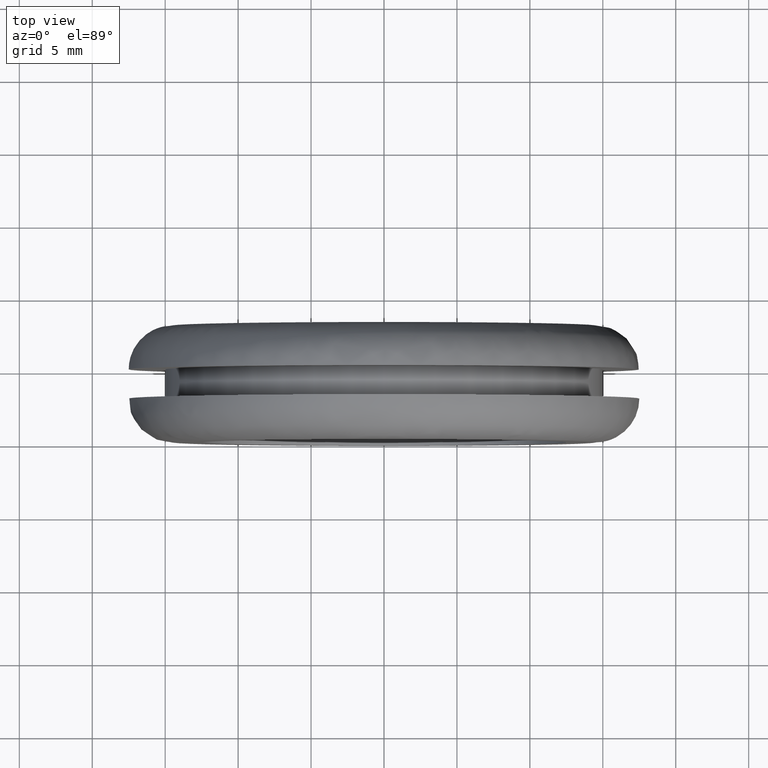
[diagram: clean part render]
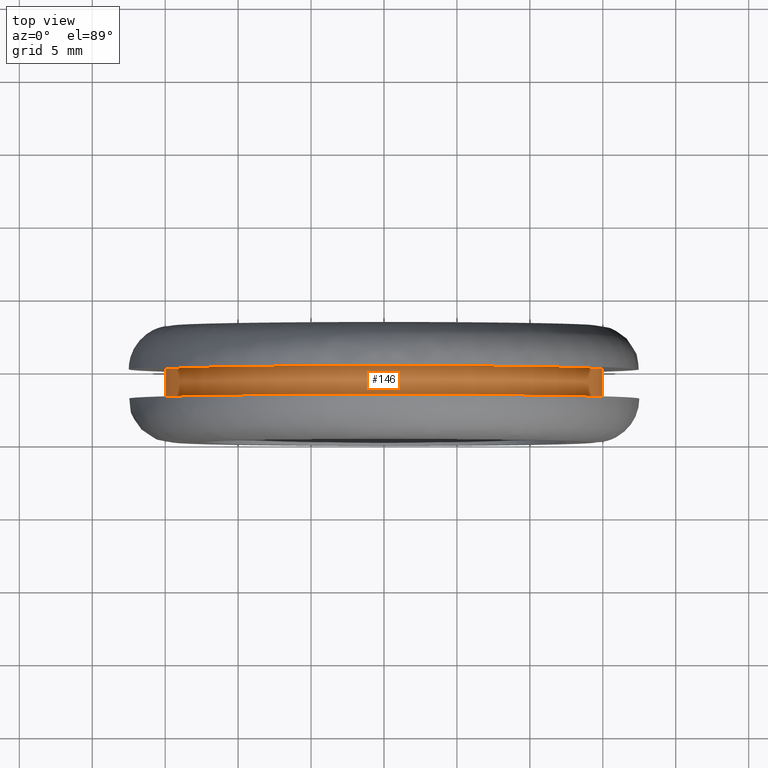
[diagram: same view with one face highlighted and labeled with its STEP entity id]
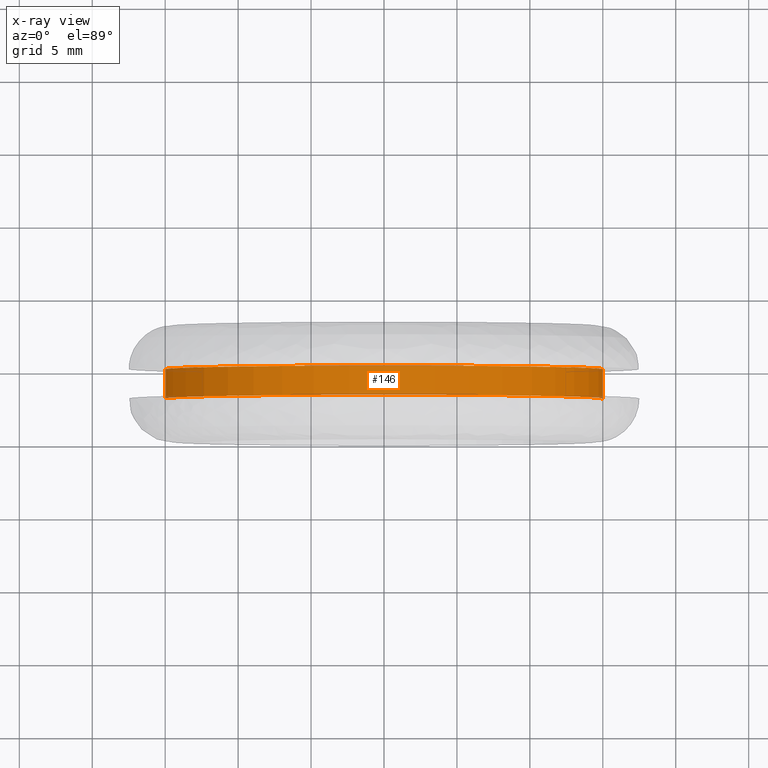
[diagram: x-ray of the same camera — body ghosted, the highlighted face saturated]
A machine part, top view. The second image highlights one B-rep face of the part: STEP entity #146.
The next image is the same camera in x-ray: the body ghosted, the highlighted face saturated — about 0% of this face is hidden behind the body in this view.
In plain terms, the highlighted face is a freeform B-spline surface patch.
Its self-contained STEP definition (entity closure, byte-faithful):
#44=CARTESIAN_POINT('',(14.895142895454988,5.050000000000002,-1.770513519851377));
#45=CARTESIAN_POINT('',(14.945814231729083,5.050000000000001,-1.344220929569665));
#46=CARTESIAN_POINT('',(14.972021976328000,5.050000000000001,-0.915728093022855));
#47=CARTESIAN_POINT('',(15.887750069350853,5.050000000000001,14.056293883305147));
#48=CARTESIAN_POINT('',(0.915728093022855,5.050000000000001,14.972021976328000));
#49=CARTESIAN_POINT('',(-14.056293883305147,5.050000000000001,15.887750069350853));
#50=CARTESIAN_POINT('',(-14.972021976328000,5.050000000000001,0.915728093022854));
#51=CARTESIAN_POINT('',(14.895142895454988,2.948750000000000,-1.770513519851377));
#52=CARTESIAN_POINT('',(14.945814231729083,2.948750000000000,-1.344220929569665));
#53=CARTESIAN_POINT('',(14.972021976328000,2.948750000000000,-0.915728093022855));
#54=CARTESIAN_POINT('',(15.887750069350853,2.948750000000000,14.056293883305147));
#55=CARTESIAN_POINT('',(0.915728093022855,2.948750000000000,14.972021976328000));
#56=CARTESIAN_POINT('',(-14.056293883305147,2.948750000000000,15.887750069350853));
#57=CARTESIAN_POINT('',(-14.972021976328000,2.948750000000000,0.915728093022854));
#65=(BOUNDED_SURFACE()B_SPLINE_SURFACE(2,1,((#44,#51),(#45,#52),(#46,#53),(#47,#54),(#48,#55),(#49,#56),(#50,#57)),.UNSPECIFIED.,.F.,.F.,.U.)B_SPLINE_SURFACE_WITH_KNOTS((3,2,2,3),(2,2),(0.0,0.994112549695429,25.846926292081129,50.699740034466821),(0.0,2.101250000000002),.UNSPECIFIED.)GEOMETRIC_REPRESENTATION_ITEM()RATIONAL_B_SPLINE_SURFACE(((0.977505800795127,0.977505800795127),(0.988284271247462,0.988284271247462),(1.0,1.0),(0.707106781186548,0.707106781186548),(1.0,1.0),(0.707106781186548,0.707106781186548),(1.0,1.0)))REPRESENTATION_ITEM('')SURFACE());
#66=CARTESIAN_POINT('',(14.895143964700610,5.000000000000178,-1.770504524354806));
#67=VERTEX_POINT('',#66);
#68=CARTESIAN_POINT('',(0.0,5.0,15.0));
#69=VERTEX_POINT('',#68);
#70=CARTESIAN_POINT('',(14.895143964700610,5.000000000000178,-1.770504524354806));
#71=CARTESIAN_POINT('',(14.999999999999996,5.0,-0.888357249481153));
#72=CARTESIAN_POINT('',(15.0,5.0,-3.061516E-016));
#73=CARTESIAN_POINT('',(14.999999999999996,4.999999999999999,14.999999999999996));
#74=CARTESIAN_POINT('',(0.0,5.0,15.0));
#82=(BOUNDED_CURVE()B_SPLINE_CURVE(2,(#70,#71,#72,#73,#74),.UNSPECIFIED.,.F.,.U.)B_SPLINE_CURVE_WITH_KNOTS((3,2,3),(0.229562575580339,0.250000000000000,0.500000000000000),.UNSPECIFIED.)CURVE()GEOMETRIC_REPRESENTATION_ITEM()RATIONAL_B_SPLINE_CURVE((0.956026954238961,0.976056067909875,1.0,0.707106781186547,1.0))REPRESENTATION_ITEM(''));
#83=EDGE_CURVE('',#67,#69,#82,.T.);
#84=ORIENTED_EDGE('',*,*,#83,.T.);
#85=CARTESIAN_POINT('',(-14.972022653572500,4.999999999999825,0.915717020038759));
#86=VERTEX_POINT('',#85);
#87=CARTESIAN_POINT('',(0.0,5.0,15.0));
#88=CARTESIAN_POINT('',(-14.110601458978342,5.000000000000002,15.000000000000004));
#89=CARTESIAN_POINT('',(-14.972022653572502,4.999999999999825,0.915717020038759));
#97=(BOUNDED_CURVE()B_SPLINE_CURVE(2,(#87,#88,#89),.UNSPECIFIED.,.F.,.U.)B_SPLINE_CURVE_WITH_KNOTS((3,3),(0.500000000000000,0.739333089853860),.UNSPECIFIED.)CURVE()GEOMETRIC_REPRESENTATION_ITEM()RATIONAL_B_SPLINE_CURVE((1.0,0.719603843776535,0.976072315169929))REPRESENTATION_ITEM(''));
#98=EDGE_CURVE('',#69,#86,#97,.T.);
#99=ORIENTED_EDGE('',*,*,#98,.T.);
#100=CARTESIAN_POINT('',(-14.972022645416461,3.0,0.915717153392057));
#101=VERTEX_POINT('',#100);
#102=CARTESIAN_POINT('',(-14.972022653572500,4.999999999999825,0.915717020038759));
#103=CARTESIAN_POINT('',(-14.972022645416461,3.0,0.915717153392057));
#104=QUASI_UNIFORM_CURVE('',1,(#102,#103),.UNSPECIFIED.,.F.,.U.);
#105=EDGE_CURVE('',#86,#101,#104,.T.);
#106=ORIENTED_EDGE('',*,*,#105,.T.);
#107=CARTESIAN_POINT('',(0.0,3.0,15.0));
#108=VERTEX_POINT('',#107);
#109=CARTESIAN_POINT('',(0.0,3.0,15.0));
#110=CARTESIAN_POINT('',(-14.110601333062750,3.000000000000000,15.000000000000002));
#111=CARTESIAN_POINT('',(-14.972022645416464,3.0,0.915717153392057));
#119=(BOUNDED_CURVE()B_SPLINE_CURVE(2,(#109,#110,#111),.UNSPECIFIED.,.F.,.U.)B_SPLINE_CURVE_WITH_KNOTS((3,3),(0.500000000000000,0.739333088317014),.UNSPECIFIED.)CURVE()GEOMETRIC_REPRESENTATION_ITEM()RATIONAL_B_SPLINE_CURVE((1.0,0.719603845577062,0.976072311876173))REPRESENTATION_ITEM(''));
#120=EDGE_CURVE('',#108,#101,#119,.T.);
#121=ORIENTED_EDGE('',*,*,#120,.F.);
#122=CARTESIAN_POINT('',(14.895143951811241,3.0,-1.770504632792812));
#123=VERTEX_POINT('',#122);
#124=CARTESIAN_POINT('',(14.895143951811241,3.000000000000000,-1.770504632792813));
#125=CARTESIAN_POINT('',(15.0,3.0,-0.888357304273344));
#126=CARTESIAN_POINT('',(15.0,3.0,-3.061516E-016));
#127=CARTESIAN_POINT('',(14.999999999999996,3.000000000000000,14.999999999999996));
#128=CARTESIAN_POINT('',(0.0,3.0,15.0));
#136=(BOUNDED_CURVE()B_SPLINE_CURVE(2,(#124,#125,#126,#127,#128),.UNSPECIFIED.,.F.,.U.)B_SPLINE_CURVE_WITH_KNOTS((3,2,3),(0.229562574349979,0.250000000000000,0.500000000000000),.UNSPECIFIED.)CURVE()GEOMETRIC_REPRESENTATION_ITEM()RATIONAL_B_SPLINE_CURVE((0.956026951827404,0.976056066468419,1.0,0.707106781186547,1.0))REPRESENTATION_ITEM(''));
#137=EDGE_CURVE('',#123,#108,#136,.T.);
#138=ORIENTED_EDGE('',*,*,#137,.F.);
#139=CARTESIAN_POINT('',(14.895143964700610,5.000000000000178,-1.770504524354806));
#140=CARTESIAN_POINT('',(14.895143951811241,3.0,-1.770504632792812));
#141=QUASI_UNIFORM_CURVE('',1,(#139,#140),.UNSPECIFIED.,.F.,.U.);
#142=EDGE_CURVE('',#67,#123,#141,.T.);
#143=ORIENTED_EDGE('',*,*,#142,.F.);
#144=EDGE_LOOP('',(#84,#99,#106,#121,#138,#143));
#145=FACE_OUTER_BOUND('',#144,.T.);
#146=ADVANCED_FACE('',(#145),#65,.T.);